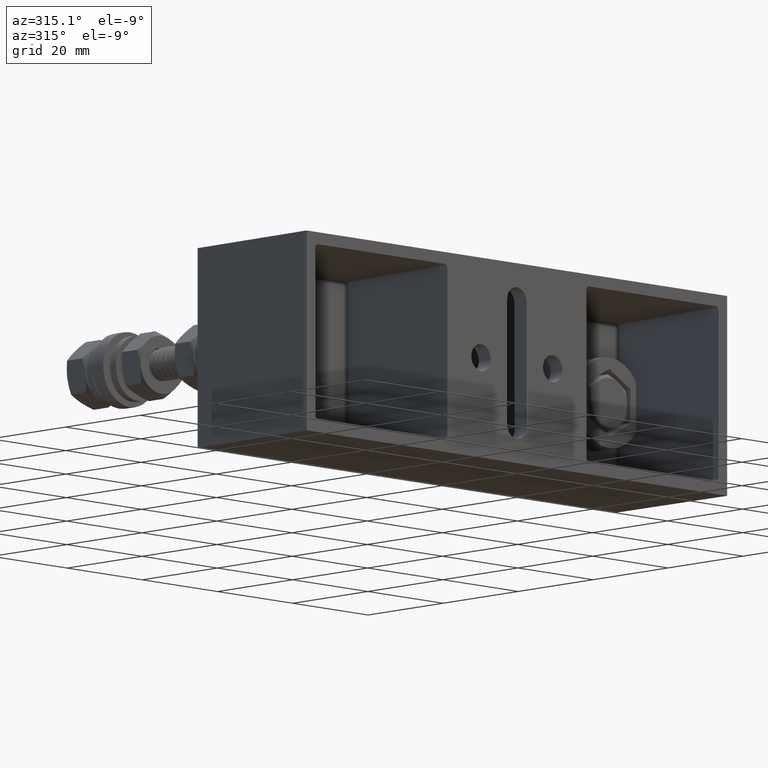
[diagram: clean part render]
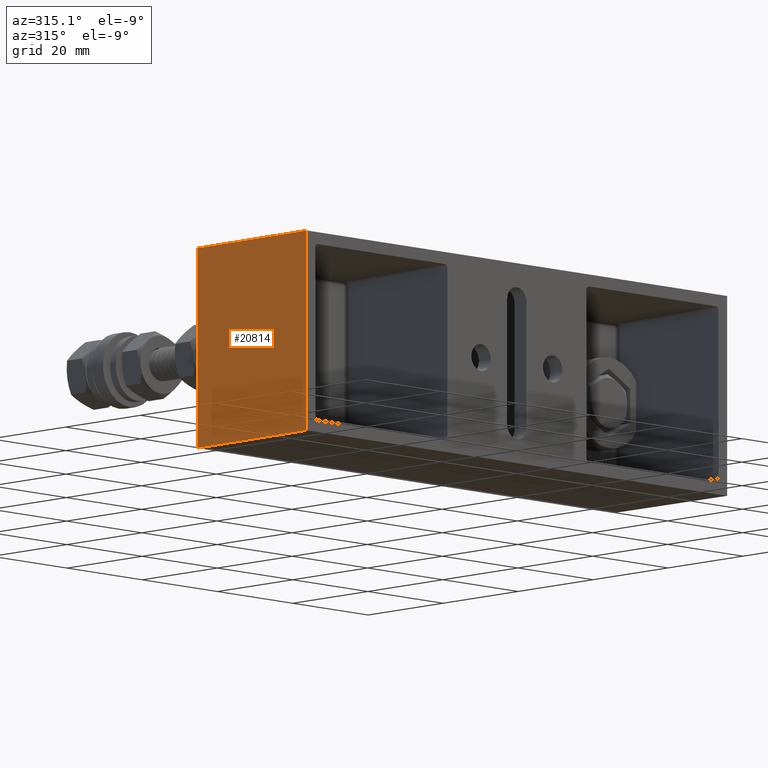
[diagram: same view with one face highlighted and labeled with its STEP entity id]
A machine part, auxiliary view. The second image highlights one B-rep face of the part: STEP entity #20814.
In plain terms, the highlighted planar face has unit normal (0.9998, -0.0175, 0).
Its self-contained STEP definition (entity closure, byte-faithful):
#3169 = CARTESIAN_POINT ( 'NONE',  ( -2.200000000000000200, 0.0000000000000000000, -0.7500000000000001100 ) ) ;
#3582 = LINE ( 'NONE', #48402, #26282 ) ;
#4056 = CARTESIAN_POINT ( 'NONE',  ( -2.200000000000000200, 0.0000000000000000000, 0.7500000000000001100 ) ) ;
#4635 = EDGE_CURVE ( 'NONE', #46369, #55329, #21435, .T. ) ;
#8700 = PLANE ( 'NONE',  #57611 ) ;
#8929 = DIRECTION ( 'NONE',  ( 0.01745240643727952900, 0.9998476951563912700, 0.0000000000000000000 ) ) ;
#10271 = VERTEX_POINT ( 'NONE', #11872 ) ;
#11872 = CARTESIAN_POINT ( 'NONE',  ( -2.200000000000000200, 0.0000000000000000000, 0.7500000000000001100 ) ) ;
#11970 = DIRECTION ( 'NONE',  ( -0.0000000000000000000, -0.0000000000000000000, -1.000000000000000000 ) ) ;
#12466 = VECTOR ( 'NONE', #11970, 39.37007874015748100 ) ;
#18715 = DIRECTION ( 'NONE',  ( -0.01745240643727953200, -0.9998476951563912700, -0.0000000000000000000 ) ) ;
#19367 = ORIENTED_EDGE ( 'NONE', *, *, #46808, .T. ) ;
#20088 = DIRECTION ( 'NONE',  ( -0.0000000000000000000, -0.0000000000000000000, -1.000000000000000000 ) ) ;
#20814 = ADVANCED_FACE ( 'NONE', ( #43619 ), #8700, .F. ) ;
#21435 = LINE ( 'NONE', #54146, #58516 ) ;
#24238 = DIRECTION ( 'NONE',  ( -0.01745240643727953200, -0.9998476951563912700, -0.0000000000000000000 ) ) ;
#25591 = LINE ( 'NONE', #57184, #51392 ) ;
#26282 = VECTOR ( 'NONE', #24238, 39.37007874015748100 ) ;
#31207 = ORIENTED_EDGE ( 'NONE', *, *, #51452, .F. ) ;
#31836 = ORIENTED_EDGE ( 'NONE', *, *, #54105, .F. ) ;
#32241 = CARTESIAN_POINT ( 'NONE',  ( -2.179664849358631300, 1.165000000000000000, -0.7500000000000001100 ) ) ;
#34257 = CARTESIAN_POINT ( 'NONE',  ( -2.179664849358631300, 1.165000000000000000, 0.7500000000000001100 ) ) ;
#36127 = CARTESIAN_POINT ( 'NONE',  ( -2.200000000000000200, 0.0000000000000000000, 0.7500000000000001100 ) ) ;
#37928 = DIRECTION ( 'NONE',  ( 0.9998476951563913800, -0.01745240643727953200, 0.0000000000000000000 ) ) ;
#38242 = LINE ( 'NONE', #36127, #12466 ) ;
#40386 = EDGE_LOOP ( 'NONE', ( #19367, #31836, #31207, #60165 ) ) ;
#43619 = FACE_OUTER_BOUND ( 'NONE', #40386, .T. ) ;
#46369 = VERTEX_POINT ( 'NONE', #34257 ) ;
#46808 = EDGE_CURVE ( 'NONE', #55329, #57744, #25591, .T. ) ;
#48402 = CARTESIAN_POINT ( 'NONE',  ( -2.200000000000000200, 0.0000000000000000000, 0.7500000000000001100 ) ) ;
#51392 = VECTOR ( 'NONE', #18715, 39.37007874015748100 ) ;
#51452 = EDGE_CURVE ( 'NONE', #46369, #10271, #3582, .T. ) ;
#54105 = EDGE_CURVE ( 'NONE', #10271, #57744, #38242, .T. ) ;
#54146 = CARTESIAN_POINT ( 'NONE',  ( -2.179664849358631300, 1.165000000000000000, 0.7500000000000001100 ) ) ;
#55329 = VERTEX_POINT ( 'NONE', #32241 ) ;
#57184 = CARTESIAN_POINT ( 'NONE',  ( -2.200000000000000200, 0.0000000000000000000, -0.7500000000000001100 ) ) ;
#57611 = AXIS2_PLACEMENT_3D ( 'NONE', #4056, #37928, #8929 ) ;
#57744 = VERTEX_POINT ( 'NONE', #3169 ) ;
#58516 = VECTOR ( 'NONE', #20088, 39.37007874015748100 ) ;
#60165 = ORIENTED_EDGE ( 'NONE', *, *, #4635, .T. ) ;